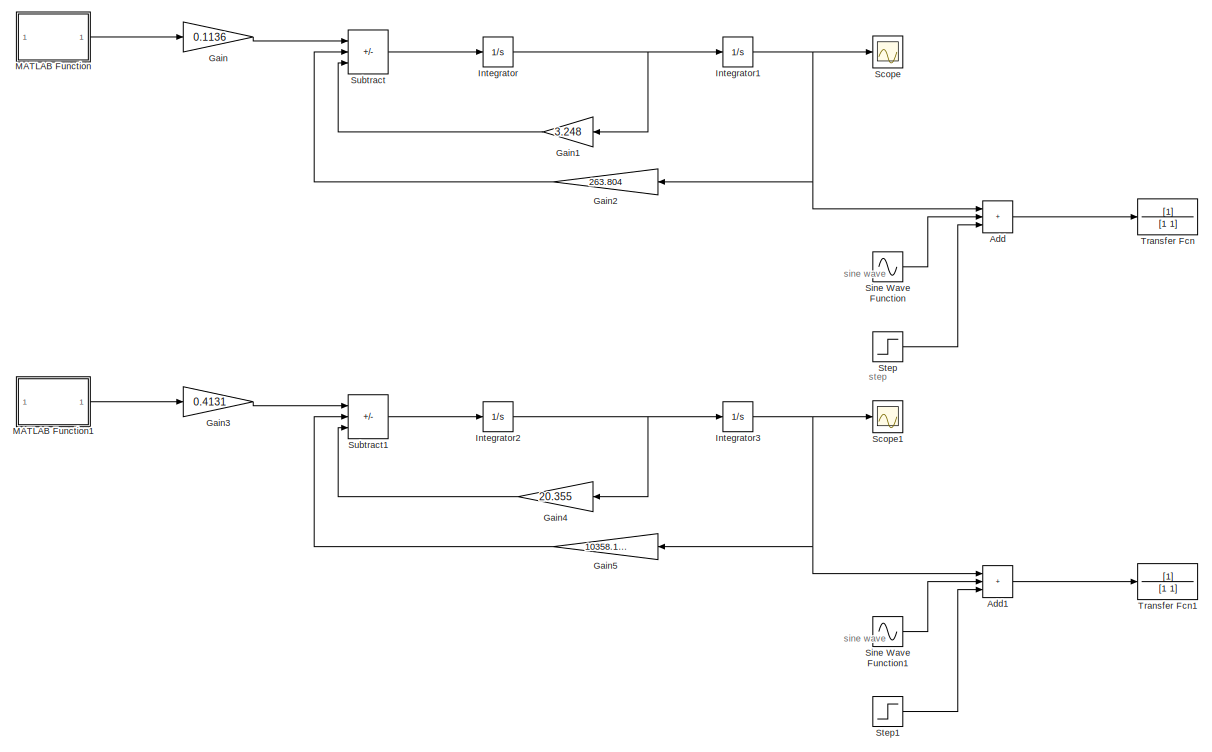
[diagram: root canvas - part 1/4, middle left region]
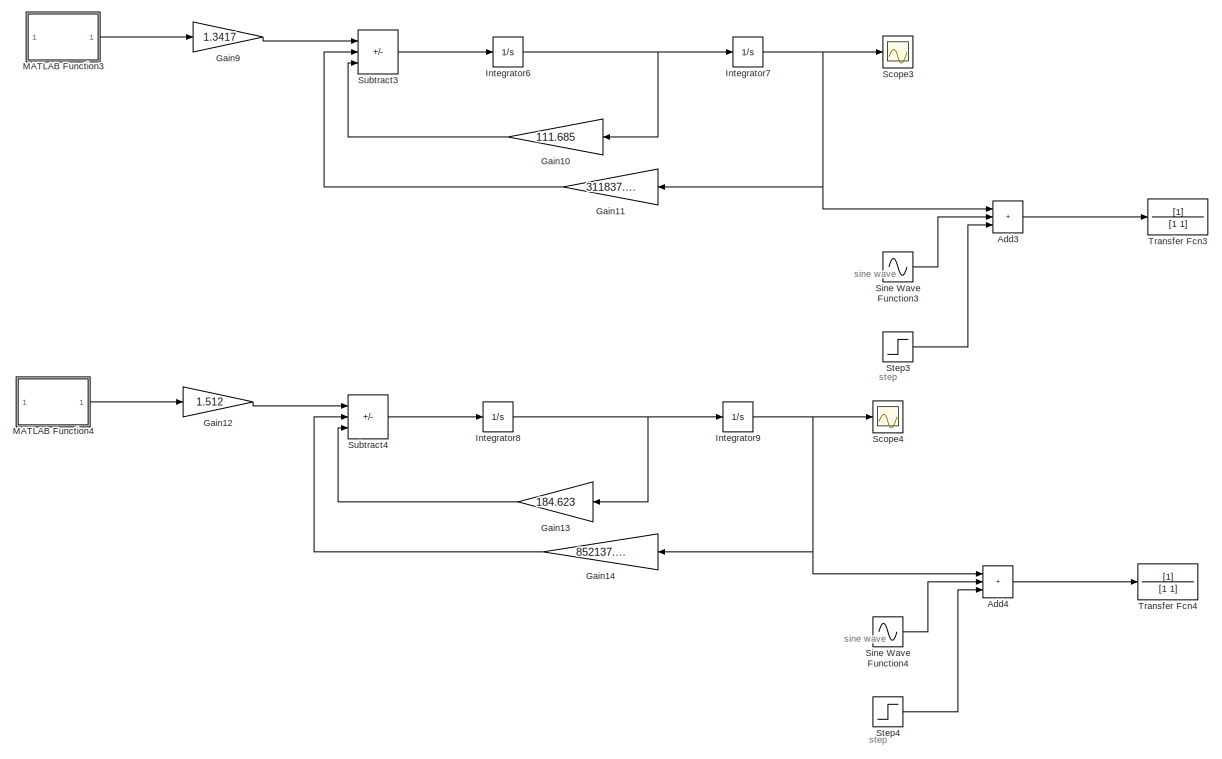
[diagram: root canvas - part 2/4, middle right region]
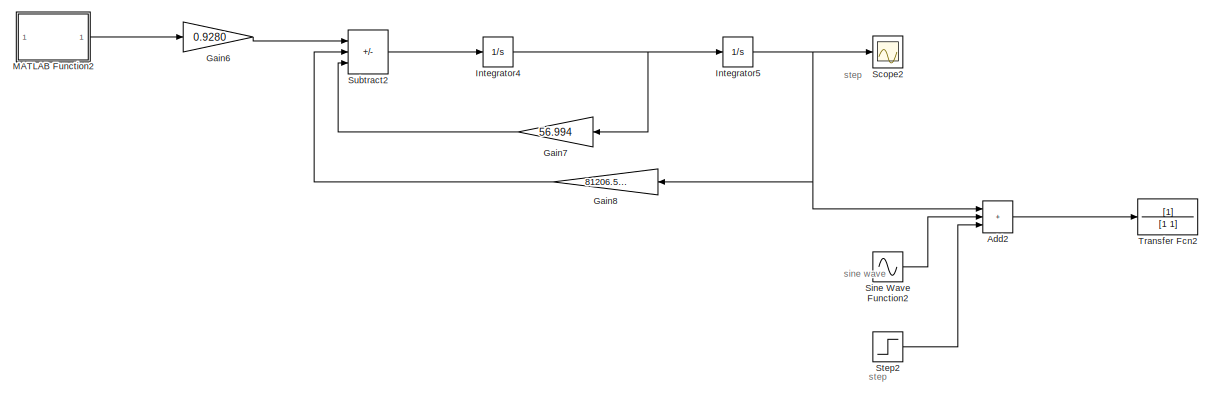
[diagram: root canvas - part 3/4, bottom left region]
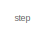
[diagram: root canvas - part 4/4, bottom right region]
MODEL slx_2873939060b8
KIND model
CONFIG AbsTol = auto
CONFIG EnableMultiTasking = off
CONFIG FixedStep = auto
CONFIG MaxStep = auto
CONFIG MinStep = auto
CONFIG RelTol = 1e-3
CONFIG SampleTimeConstraint = Unconstrained
CONFIG SolverName = VariableStepAuto
CONFIG StartTime = 0.0
CONFIG StopTime = 10.0
BLOCK [Sum] Add
  IconShape = rectangular
  Inputs = +++
BLOCK [Sum] Add1
  IconShape = rectangular
  Inputs = +++
BLOCK [Sum] Add2
  IconShape = rectangular
  Inputs = +++
BLOCK [Sum] Add3
  IconShape = rectangular
  Inputs = +++
BLOCK [Sum] Add4
  IconShape = rectangular
  Inputs = +++
BLOCK [Gain] Gain
  Gain = 0.1136
BLOCK [Gain] Gain1
  Gain = 3.248
BLOCK [Gain] Gain10
  Gain = 111.685
BLOCK [Gain] Gain11
  Gain = 311837.785
BLOCK [Gain] Gain12
  Gain = 1.512
BLOCK [Gain] Gain13
  Gain = 184.623
BLOCK [Gain] Gain14
  Gain = 852137.646
BLOCK [Gain] Gain2
  Gain = 263.804
BLOCK [Gain] Gain3
  Gain = 0.4131
BLOCK [Gain] Gain4
  Gain = 20.355
BLOCK [Gain] Gain5
  Gain = 10358.158
BLOCK [Gain] Gain6
  Gain = 0.9280
BLOCK [Gain] Gain7
  Gain = 56.994
BLOCK [Gain] Gain8
  Gain = 81206.525
BLOCK [Gain] Gain9
  Gain = 1.3417
BLOCK [Integrator] Integrator
BLOCK [Integrator] Integrator1
BLOCK [Integrator] Integrator2
BLOCK [Integrator] Integrator3
BLOCK [Integrator] Integrator4
BLOCK [Integrator] Integrator5
BLOCK [Integrator] Integrator6
BLOCK [Integrator] Integrator7
BLOCK [Integrator] Integrator8
BLOCK [Integrator] Integrator9
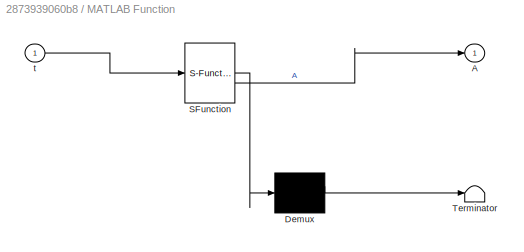
BLOCK [SubSystem] MATLAB Function
  ErrorFcn = Stateflow.Translate.translate
  PermitHierarchicalResolution = ExplicitOnly
  SFBlockType = MATLAB Function
  TreatAsAtomicUnit = on
BLOCK [Demux] MATLAB Function/ Demux 
  Outputs = 1
BLOCK [S-Function] MATLAB Function/ SFunction 
  EnableBusSupport = on
  FunctionName = sf_sfun
  PortCounts = [1 2]
  SFcnIsStateOwnerBlock = off
  SFunctionDeploymentMode = off
  Tag = Stateflow S-Function 1
BLOCK [Terminator] MATLAB Function/ Terminator 
BLOCK [Outport] MATLAB Function/A
BLOCK [Inport] MATLAB Function/t
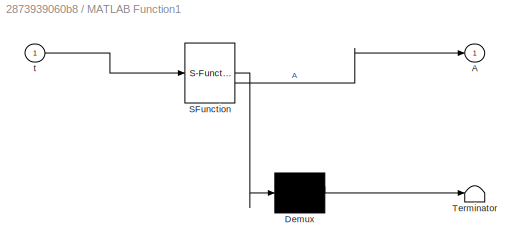
BLOCK [SubSystem] MATLAB Function1
  ErrorFcn = Stateflow.Translate.translate
  PermitHierarchicalResolution = ExplicitOnly
  SFBlockType = MATLAB Function
  TreatAsAtomicUnit = on
BLOCK [Demux] MATLAB Function1/ Demux 
  Outputs = 1
BLOCK [S-Function] MATLAB Function1/ SFunction 
  EnableBusSupport = on
  FunctionName = sf_sfun
  PortCounts = [1 2]
  SFcnIsStateOwnerBlock = off
  SFunctionDeploymentMode = off
  Tag = Stateflow S-Function 2
BLOCK [Terminator] MATLAB Function1/ Terminator 
BLOCK [Outport] MATLAB Function1/A
BLOCK [Inport] MATLAB Function1/t
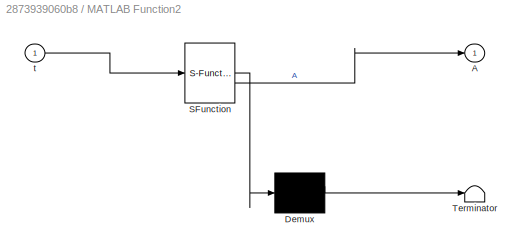
BLOCK [SubSystem] MATLAB Function2
  ErrorFcn = Stateflow.Translate.translate
  PermitHierarchicalResolution = ExplicitOnly
  SFBlockType = MATLAB Function
  TreatAsAtomicUnit = on
BLOCK [Demux] MATLAB Function2/ Demux 
  Outputs = 1
BLOCK [S-Function] MATLAB Function2/ SFunction 
  EnableBusSupport = on
  FunctionName = sf_sfun
  PortCounts = [1 2]
  SFcnIsStateOwnerBlock = off
  SFunctionDeploymentMode = off
  Tag = Stateflow S-Function 3
BLOCK [Terminator] MATLAB Function2/ Terminator 
BLOCK [Outport] MATLAB Function2/A
BLOCK [Inport] MATLAB Function2/t
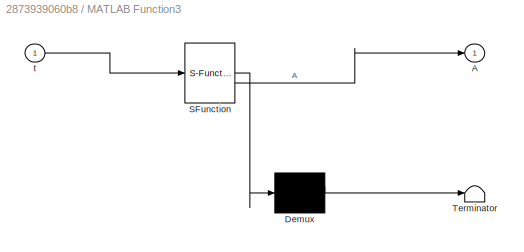
BLOCK [SubSystem] MATLAB Function3
  ErrorFcn = Stateflow.Translate.translate
  PermitHierarchicalResolution = ExplicitOnly
  SFBlockType = MATLAB Function
  TreatAsAtomicUnit = on
BLOCK [Demux] MATLAB Function3/ Demux 
  Outputs = 1
BLOCK [S-Function] MATLAB Function3/ SFunction 
  EnableBusSupport = on
  FunctionName = sf_sfun
  PortCounts = [1 2]
  SFcnIsStateOwnerBlock = off
  SFunctionDeploymentMode = off
  Tag = Stateflow S-Function 4
BLOCK [Terminator] MATLAB Function3/ Terminator 
BLOCK [Outport] MATLAB Function3/A
BLOCK [Inport] MATLAB Function3/t
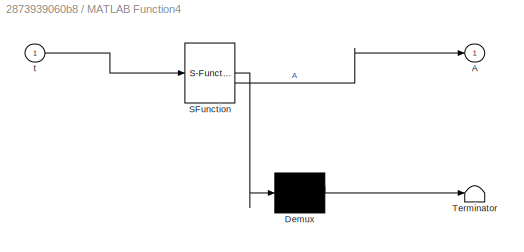
BLOCK [SubSystem] MATLAB Function4
  ErrorFcn = Stateflow.Translate.translate
  PermitHierarchicalResolution = ExplicitOnly
  SFBlockType = MATLAB Function
  TreatAsAtomicUnit = on
BLOCK [Demux] MATLAB Function4/ Demux 
  Outputs = 1
BLOCK [S-Function] MATLAB Function4/ SFunction 
  EnableBusSupport = on
  FunctionName = sf_sfun
  PortCounts = [1 2]
  SFcnIsStateOwnerBlock = off
  SFunctionDeploymentMode = off
  Tag = Stateflow S-Function 5
BLOCK [Terminator] MATLAB Function4/ Terminator 
BLOCK [Outport] MATLAB Function4/A
BLOCK [Inport] MATLAB Function4/t
BLOCK [Scope] Scope
  Floating = off
  NumInputPorts = 1
  ScopeSpecificationString = Simulink.scopes.TimeScopeBlockCfg('CurrentConfiguration', extmgr.ConfigurationSet(extmgr.Configuration('Core','General UI',true),extmgr.Configuration('Core','Source UI',true),extmgr.Configuration('Sources','WiredSimulink',true,'DataLoggingVariableName','ScopeData1'),extmgr.Configuration('Visuals','Time Domain',true,'SerializedDisplays',{struct('MinYLimReal','-0.00009','MaxYLimReal','0.00084','YLab...<+1401ch>
BLOCK [Scope] Scope1
  Floating = off
  NumInputPorts = 1
  ScopeSpecificationString = Simulink.scopes.TimeScopeBlockCfg('CurrentConfiguration', extmgr.ConfigurationSet(extmgr.Configuration('Core','General UI',true),extmgr.Configuration('Core','Source UI',true),extmgr.Configuration('Sources','WiredSimulink',true,'DataLoggingVariableName','ScopeData2'),extmgr.Configuration('Visuals','Time Domain',true,'SerializedDisplays',{struct('MinYLimReal','-0.000009','MaxYLimReal','0.000078','YL...<+1411ch>
BLOCK [Scope] Scope2
  Floating = off
  NumInputPorts = 1
  ScopeSpecificationString = Simulink.scopes.TimeScopeBlockCfg('CurrentConfiguration', extmgr.ConfigurationSet(extmgr.Configuration('Core','General UI',true),extmgr.Configuration('Core','Source UI',true),extmgr.Configuration('Sources','WiredSimulink',true,'DataLoggingVariableName','ScopeData3'),extmgr.Configuration('Visuals','Time Domain',true,'SerializedDisplays',{struct('MinYLimReal','-0.000002','MaxYLimReal','0.000022','YL...<+1411ch>
BLOCK [Scope] Scope3
  Floating = off
  NumInputPorts = 1
  ScopeSpecificationString = Simulink.scopes.TimeScopeBlockCfg('CurrentConfiguration', extmgr.ConfigurationSet(extmgr.Configuration('Core','General UI',true),extmgr.Configuration('Core','Source UI',true),extmgr.Configuration('Sources','WiredSimulink',true,'DataLoggingVariableName','ScopeData4'),extmgr.Configuration('Visuals','Time Domain',true,'SerializedDisplays',{struct('MinYLimReal','-0.000009','MaxYLimReal','0.000009','YL...<+1430ch>
BLOCK [Scope] Scope4
  Floating = off
  NumInputPorts = 1
  ScopeSpecificationString = Simulink.scopes.TimeScopeBlockCfg('CurrentConfiguration', extmgr.ConfigurationSet(extmgr.Configuration('Core','General UI',true),extmgr.Configuration('Core','Source UI',true),extmgr.Configuration('Sources','WiredSimulink',true),extmgr.Configuration('Visuals','Time Domain',true,'SerializedDisplays',{struct('MinYLimReal','0.00000168','MaxYLimReal','0.00000183','YLabelReal','','MinYLimMag','0.0000016...<+1430ch>
BLOCK [Sin] Sine Wave Function
  SampleTime = 0
  TimeSource = Use external signal
BLOCK [Sin] Sine Wave Function1
  SampleTime = 0
  TimeSource = Use external signal
BLOCK [Sin] Sine Wave Function2
  SampleTime = 0
  TimeSource = Use external signal
BLOCK [Sin] Sine Wave Function3
  SampleTime = 0
  TimeSource = Use external signal
BLOCK [Sin] Sine Wave Function4
  SampleTime = 0
  TimeSource = Use external signal
BLOCK [Step] Step
  SampleTime = 0
BLOCK [Step] Step1
  SampleTime = 0
BLOCK [Step] Step2
  SampleTime = 0
BLOCK [Step] Step3
  SampleTime = 0
BLOCK [Step] Step4
  SampleTime = 0
BLOCK [Sum] Subtract
  IconShape = rectangular
  Inputs = +--
BLOCK [Sum] Subtract1
  IconShape = rectangular
  Inputs = +--
BLOCK [Sum] Subtract2
  IconShape = rectangular
  Inputs = +--
BLOCK [Sum] Subtract3
  IconShape = rectangular
  Inputs = +--
BLOCK [Sum] Subtract4
  IconShape = rectangular
  Inputs = +--
BLOCK [TransferFcn] Transfer Fcn
  Denominator = [1 1]
BLOCK [TransferFcn] Transfer Fcn1
  Denominator = [1 1]
BLOCK [TransferFcn] Transfer Fcn2
  Denominator = [1 1]
BLOCK [TransferFcn] Transfer Fcn3
  Denominator = [1 1]
BLOCK [TransferFcn] Transfer Fcn4
  Denominator = [1 1]
ANNOTATION (root): sine wave
ANNOTATION (root): step
LINE Add1:1 -> Transfer Fcn1:1
LINE Add2:1 -> Transfer Fcn2:1
LINE Add3:1 -> Transfer Fcn3:1
LINE Add4:1 -> Transfer Fcn4:1
LINE Add:1 -> Transfer Fcn:1
LINE Gain10:1 -> Subtract3:3
LINE Gain11:1 -> Subtract3:2
LINE Gain12:1 -> Subtract4:1
LINE Gain13:1 -> Subtract4:3
LINE Gain14:1 -> Subtract4:2
LINE Gain1:1 -> Subtract:3
LINE Gain2:1 -> Subtract:2
LINE Gain3:1 -> Subtract1:1
LINE Gain4:1 -> Subtract1:3
LINE Gain5:1 -> Subtract1:2
LINE Gain6:1 -> Subtract2:1
LINE Gain7:1 -> Subtract2:3
LINE Gain8:1 -> Subtract2:2
LINE Gain9:1 -> Subtract3:1
LINE Gain:1 -> Subtract:1
NET Integrator1:1 -> Add:1, Gain2:1, Scope:1
NET Integrator2:1 -> Gain4:1, Integrator3:1
NET Integrator3:1 -> Add1:1, Gain5:1, Scope1:1
NET Integrator4:1 -> Gain7:1, Integrator5:1
NET Integrator5:1 -> Add2:1, Gain8:1, Scope2:1
NET Integrator6:1 -> Gain10:1, Integrator7:1
NET Integrator7:1 -> Add3:1, Gain11:1, Scope3:1
NET Integrator8:1 -> Gain13:1, Integrator9:1
NET Integrator9:1 -> Add4:1, Gain14:1, Scope4:1
NET Integrator:1 -> Gain1:1, Integrator1:1
LINE MATLAB Function1:1 -> Gain3:1
LINE MATLAB Function2:1 -> Gain6:1
LINE MATLAB Function3:1 -> Gain9:1
LINE MATLAB Function4:1 -> Gain12:1
LINE MATLAB Function:1 -> Gain:1
LINE Sine Wave Function1:1 -> Add1:2
LINE Sine Wave Function2:1 -> Add2:2
LINE Sine Wave Function3:1 -> Add3:2
LINE Sine Wave Function4:1 -> Add4:2
LINE Sine Wave Function:1 -> Add:2
LINE Step1:1 -> Add1:3
LINE Step2:1 -> Add2:3
LINE Step3:1 -> Add3:3
LINE Step4:1 -> Add4:3
LINE Step:1 -> Add:3
LINE Subtract1:1 -> Integrator2:1
LINE Subtract2:1 -> Integrator4:1
LINE Subtract3:1 -> Integrator6:1
LINE Subtract4:1 -> Integrator8:1
LINE Subtract:1 -> Integrator:1
note: NET lines group one-source signal fan-out (src -> all destinations, sorted); 1:1 wires keep LINE
CHART MATLAB Function1 states=1 transitions=1
  STATE_LABEL 'eML_blk_kernel()'
  STATE_LABEL 'SCRIPT:\nfunction A = customSignal(t)\n    if t >= 0\n        A = exp(3*t); % Since u(t) = 1 for t >= 0\n    else\n        A = 0; % Since u(t) = 0 for t < 0\n    end\nend\n\n'
CHART MATLAB Function2 states=1 transitions=1
  STATE_LABEL 'eML_blk_kernel()'
  STATE_LABEL 'SCRIPT:\nfunction A = customSignal(t)\n    if t >= 0\n        A = exp(3*t); % Since u(t) = 1 for t >= 0\n    else\n        A = 0; % Since u(t) = 0 for t < 0\n    end\nend\n\n'
CHART MATLAB Function3 states=1 transitions=1
  STATE_LABEL 'eML_blk_kernel()'
  STATE_LABEL 'SCRIPT:\nfunction A = customSignal(t)\n    if t >= 0\n        A = exp(3*t); % Since u(t) = 1 for t >= 0\n    else\n        A = 0; % Since u(t) = 0 for t < 0\n    end\nend\n\n'
CHART MATLAB Function4 states=1 transitions=1
  STATE_LABEL 'eML_blk_kernel()'
  STATE_LABEL 'SCRIPT:\nfunction A = customSignal(t)\n    if t >= 0\n        A = exp(3*t); % Since u(t) = 1 for t >= 0\n    else\n        A = 0; % Since u(t) = 0 for t < 0\n    end\nend\n\n'
CHART MATLAB Function states=1 transitions=1
  STATE_LABEL 'eML_blk_kernel()'
  STATE_LABEL 'SCRIPT:\nfunction A = customSignal(t)\n    if t >= 0\n        A = exp(3*t); % Since u(t) = 1 for t >= 0\n    else\n        A = 0; % Since u(t) = 0 for t < 0\n    end\nend\n\n'
CHART  states=0 transitions=0
CHART  states=0 transitions=0
CHART  states=0 transitions=0
CHART  states=0 transitions=0
CHART  states=0 transitions=0
